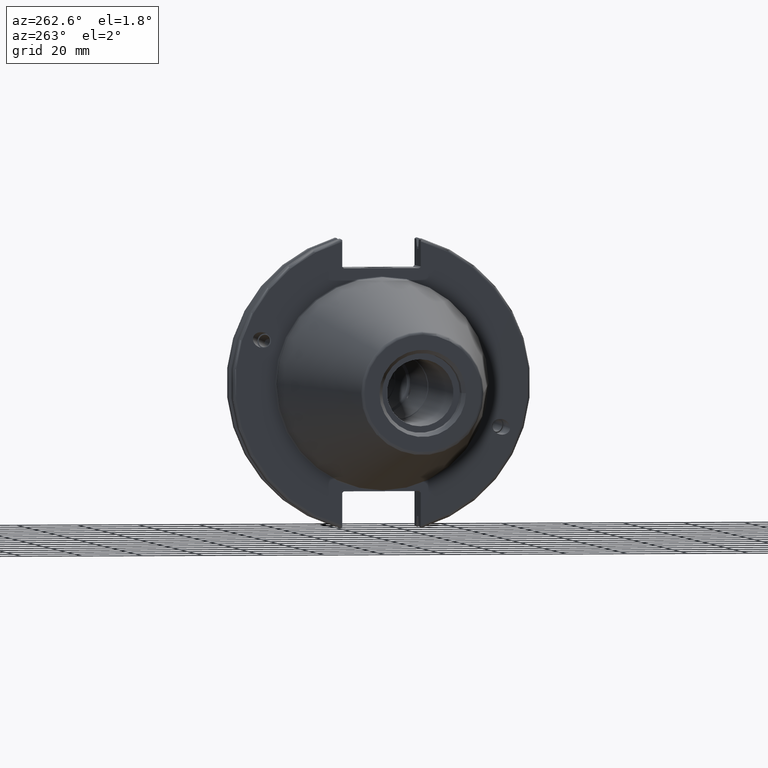
[diagram: clean part render]
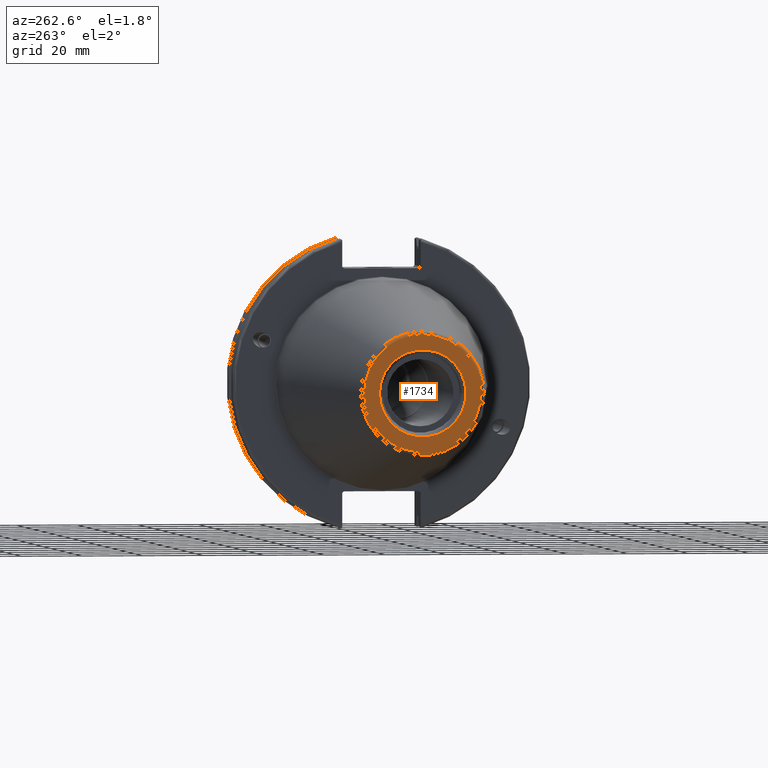
[diagram: same view with one face highlighted and labeled with its STEP entity id]
A machine part, auxiliary view. The second image highlights one B-rep face of the part: STEP entity #1734.
In plain terms, the highlighted planar face has unit normal (-1, 0, 0).
Its self-contained STEP definition (entity closure, byte-faithful):
#75=FACE_BOUND('',#606,.T.);
#98=PLANE('',#1935);
#391=CIRCLE('',#1932,19.2435889303637);
#392=CIRCLE('',#1933,19.2435889303637);
#394=CIRCLE('',#1936,14.2875);
#395=CIRCLE('',#1937,14.2875);
#498=FACE_OUTER_BOUND('',#605,.T.);
#605=EDGE_LOOP('',(#1527,#1528));
#606=EDGE_LOOP('',(#1529,#1530));
#857=VERTEX_POINT('',#3533);
#858=VERTEX_POINT('',#3535);
#859=VERTEX_POINT('',#3540);
#860=VERTEX_POINT('',#3541);
#1100=EDGE_CURVE('',#857,#858,#391,.T.);
#1101=EDGE_CURVE('',#858,#857,#392,.T.);
#1103=EDGE_CURVE('',#859,#860,#394,.T.);
#1104=EDGE_CURVE('',#860,#859,#395,.T.);
#1527=ORIENTED_EDGE('',*,*,#1101,.F.);
#1528=ORIENTED_EDGE('',*,*,#1100,.F.);
#1529=ORIENTED_EDGE('',*,*,#1103,.T.);
#1530=ORIENTED_EDGE('',*,*,#1104,.T.);
#1734=ADVANCED_FACE('',(#498,#75),#98,.T.);
#1932=AXIS2_PLACEMENT_3D('',#3536,#2359,#2360);
#1933=AXIS2_PLACEMENT_3D('',#3537,#2361,#2362);
#1935=AXIS2_PLACEMENT_3D('',#3539,#2365,#2366);
#1936=AXIS2_PLACEMENT_3D('',#3542,#2367,#2368);
#1937=AXIS2_PLACEMENT_3D('',#3543,#2369,#2370);
#2359=DIRECTION('center_axis',(1.,0.,0.));
#2360=DIRECTION('ref_axis',(0.,-1.,1.83697019872103E-16));
#2361=DIRECTION('center_axis',(1.,0.,0.));
#2362=DIRECTION('ref_axis',(0.,-1.,1.83697019872103E-16));
#2365=DIRECTION('center_axis',(-1.,0.,0.));
#2366=DIRECTION('ref_axis',(0.,0.,1.));
#2367=DIRECTION('center_axis',(1.,0.,0.));
#2368=DIRECTION('ref_axis',(0.,0.,-1.));
#2369=DIRECTION('center_axis',(1.,0.,0.));
#2370=DIRECTION('ref_axis',(0.,0.,-1.));
#3533=CARTESIAN_POINT('',(-101.6,-2.35665995876774E-15,19.2435889303637));
#3535=CARTESIAN_POINT('',(-101.6,19.2435889303637,-1.17832997938387E-15));
#3536=CARTESIAN_POINT('Origin',(-101.6,0.,0.));
#3537=CARTESIAN_POINT('Origin',(-101.6,0.,0.));
#3539=CARTESIAN_POINT('Origin',(-101.6,20.1083333333333,0.));
#3540=CARTESIAN_POINT('',(-101.6,14.2875,0.));
#3541=CARTESIAN_POINT('',(-101.6,-14.2875,-1.74971411428178E-15));
#3542=CARTESIAN_POINT('Origin',(-101.6,0.,0.));
#3543=CARTESIAN_POINT('Origin',(-101.6,0.,0.));